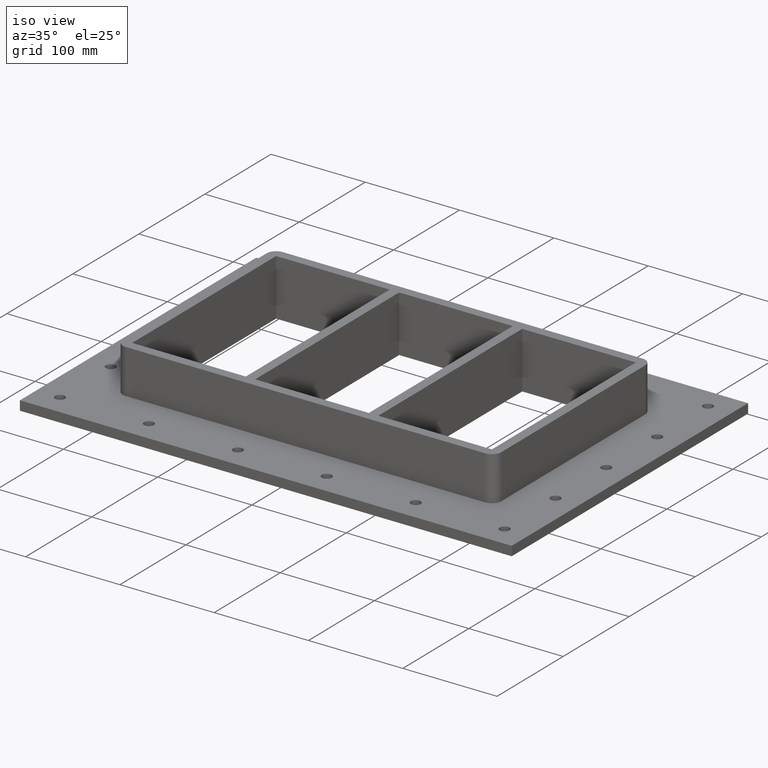
[diagram: clean part render]
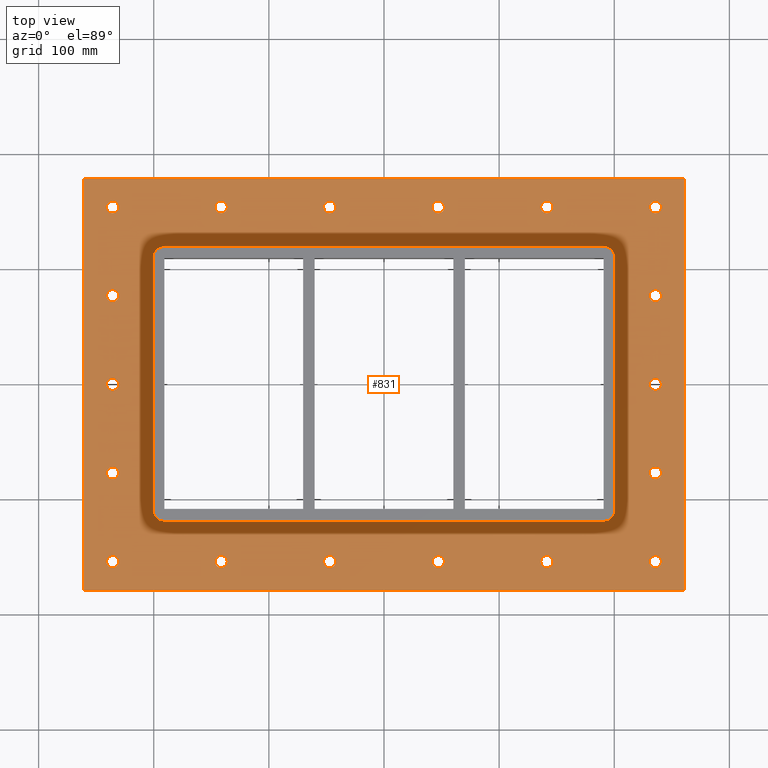
[diagram: tour spotlight — one face highlighted and labeled with its STEP entity id]
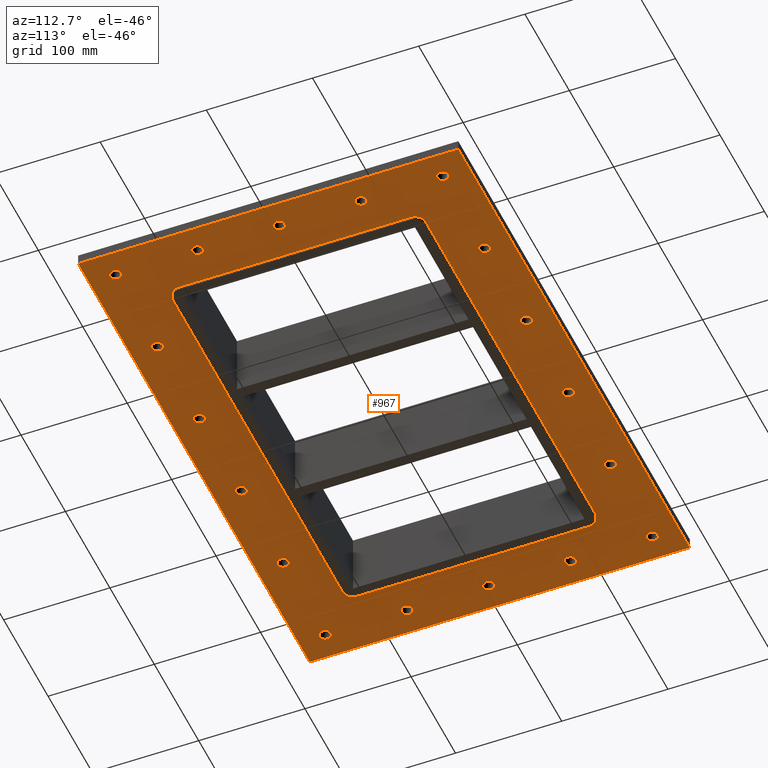
[diagram: tour spotlight — one face highlighted and labeled with its STEP entity id]
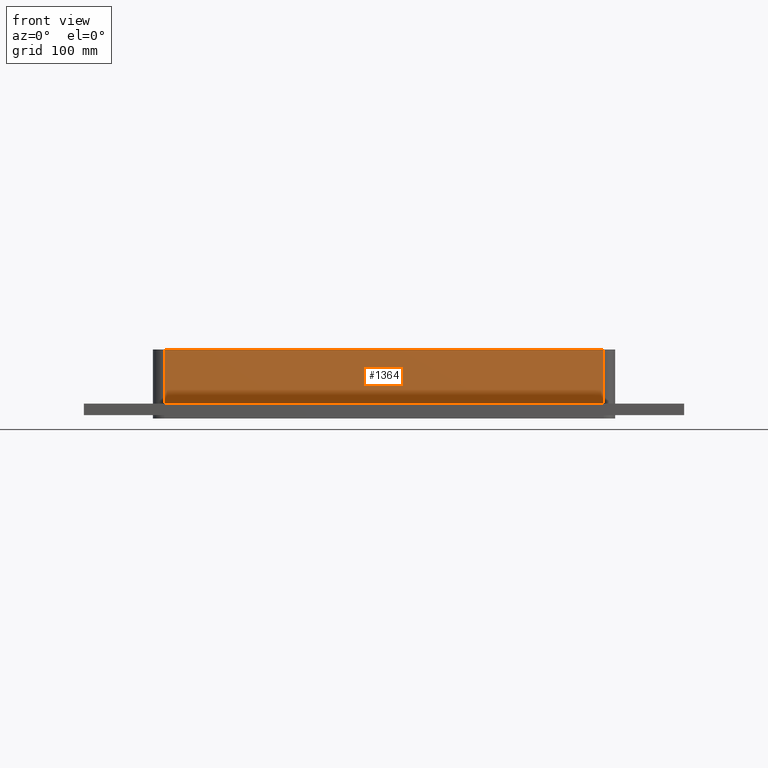
[diagram: tour spotlight — one face highlighted and labeled with its STEP entity id]
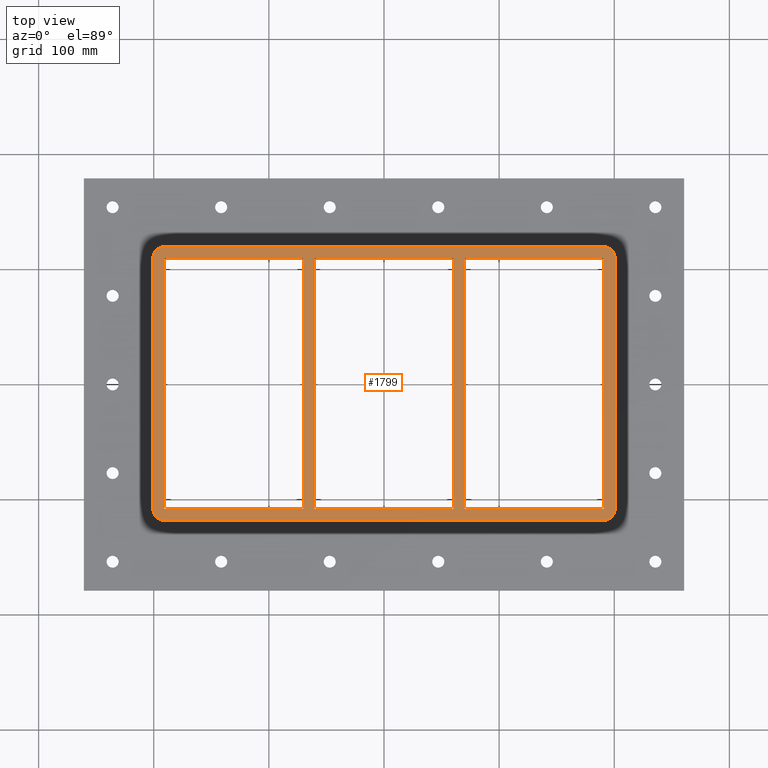
[diagram: tour spotlight — one face highlighted and labeled with its STEP entity id]
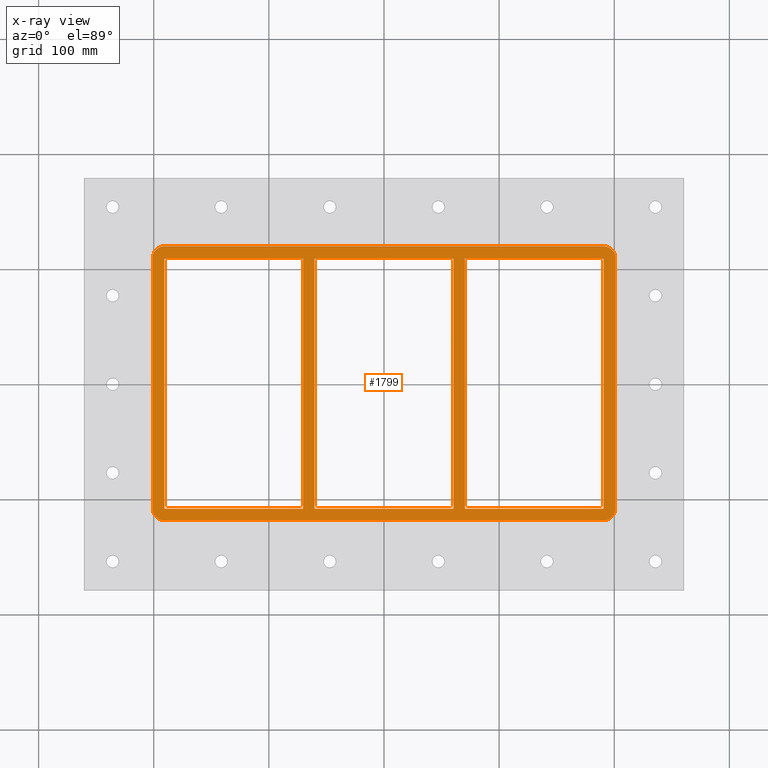
[diagram: x-ray of the same camera — body ghosted, this tour face saturated]
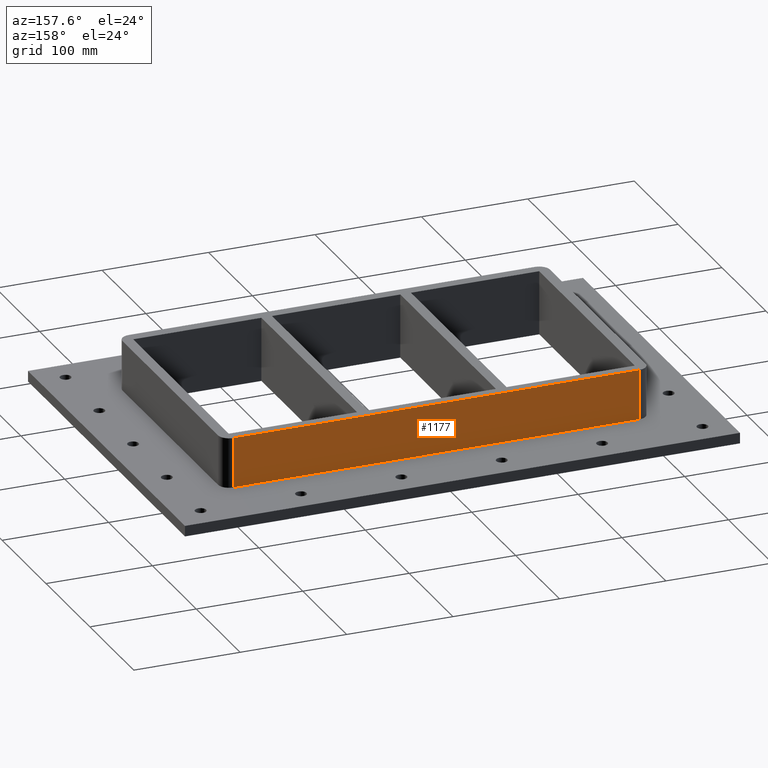
[diagram: tour spotlight — one face highlighted and labeled with its STEP entity id]
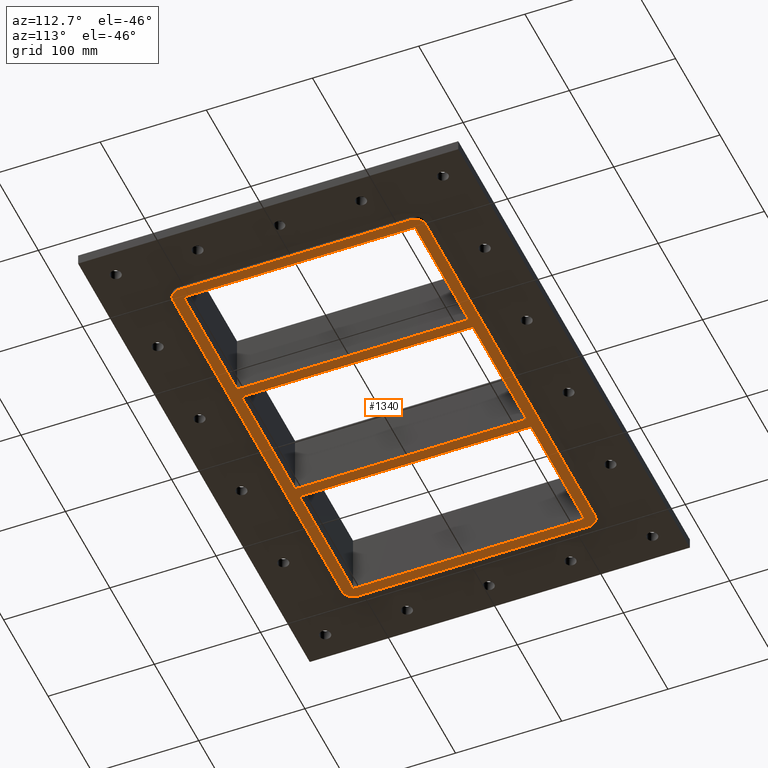
[diagram: tour spotlight — one face highlighted and labeled with its STEP entity id]
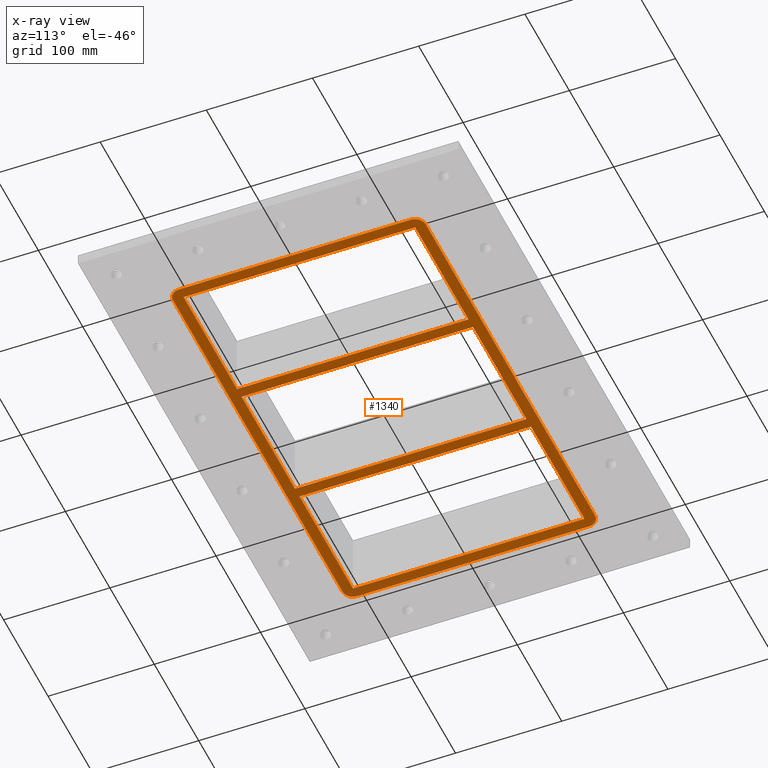
[diagram: x-ray of the same camera — body ghosted, this tour face saturated]
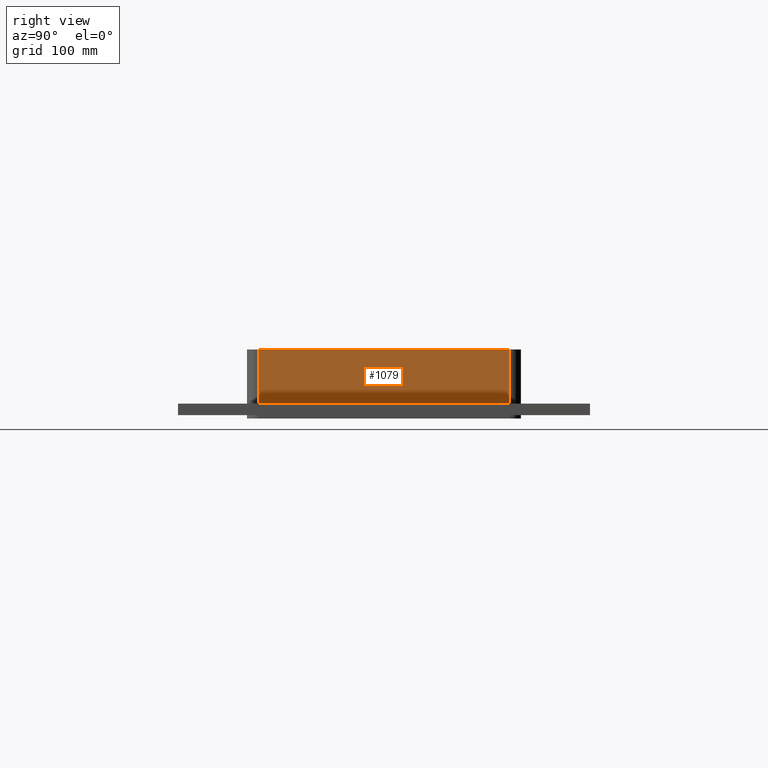
[diagram: tour spotlight — one face highlighted and labeled with its STEP entity id]
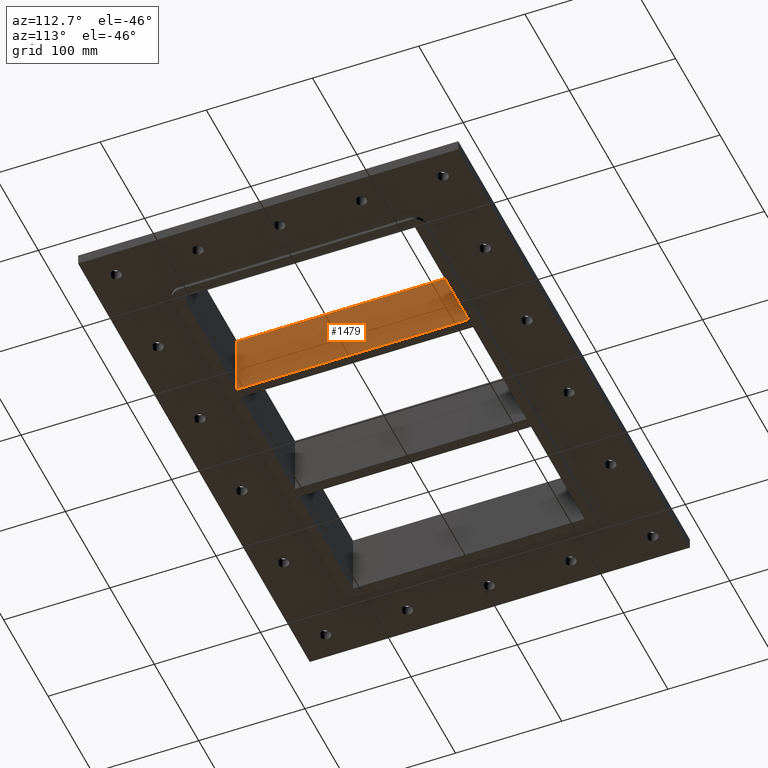
[diagram: tour spotlight — one face highlighted and labeled with its STEP entity id]
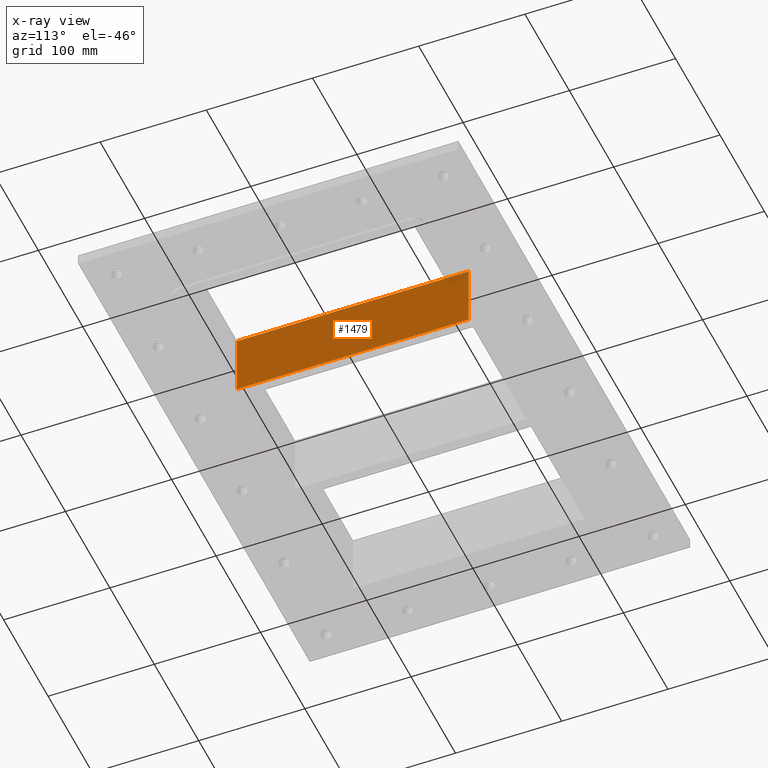
[diagram: x-ray of the same camera — body ghosted, this tour face saturated]
A machine part: a face-by-face anatomy tour. The part has 54 B-rep faces; the first image is the clean iso view, then the 8 largest visible faces are spotlighted one at a time (largest first), each with its STEP entity span.

Face 1 — top view, entity #831. In plain terms, the highlighted planar face has unit normal (0, 0, 1).
Definition (entity closure, byte-faithful):
#84=CARTESIAN_POINT('',(-136.20000000000002,-154.00000000000003,-17.0));
#85=VERTEX_POINT('',#84);
#86=CARTESIAN_POINT('',(-141.45000000000002,-154.00000000000003,-17.000000000000028));
#87=DIRECTION('',(0.0,0.0,-1.0));
#88=DIRECTION('',(1.0,0.0,0.0));
#89=AXIS2_PLACEMENT_3D('',#86,#87,#88);
#90=CIRCLE('',#89,5.25);
#91=EDGE_CURVE('',#85,#85,#90,.T.);
#112=CARTESIAN_POINT('',(-41.900000000000034,-154.00000000000003,-17.0));
#113=VERTEX_POINT('',#112);
#114=CARTESIAN_POINT('',(-47.15000000000002,-154.00000000000003,-17.000000000000028));
#115=DIRECTION('',(0.0,0.0,-1.0));
#116=DIRECTION('',(1.0,0.0,0.0));
#117=AXIS2_PLACEMENT_3D('',#114,#115,#116);
#118=CIRCLE('',#117,5.25);
#119=EDGE_CURVE('',#113,#113,#118,.T.);
#140=CARTESIAN_POINT('',(52.40000000000002,-154.00000000000003,-17.0));
#141=VERTEX_POINT('',#140);
#142=CARTESIAN_POINT('',(47.150000000000034,-154.00000000000003,-17.000000000000028));
#143=DIRECTION('',(0.0,0.0,-1.0));
#144=DIRECTION('',(1.0,0.0,0.0));
#145=AXIS2_PLACEMENT_3D('',#142,#143,#144);
#146=CIRCLE('',#145,5.25);
#147=EDGE_CURVE('',#141,#141,#146,.T.);
#168=CARTESIAN_POINT('',(146.70000000000005,-154.0,-17.0));
#169=VERTEX_POINT('',#168);
#170=CARTESIAN_POINT('',(141.45000000000005,-154.0,-17.000000000000028));
#171=DIRECTION('',(0.0,0.0,-1.0));
#172=DIRECTION('',(1.0,0.0,0.0));
#173=AXIS2_PLACEMENT_3D('',#170,#171,#172);
#174=CIRCLE('',#173,5.25);
#175=EDGE_CURVE('',#169,#169,#174,.T.);
#196=CARTESIAN_POINT('',(146.69999999999999,154.00000000000003,-17.0));
#197=VERTEX_POINT('',#196);
#198=CARTESIAN_POINT('',(141.45000000000002,154.00000000000003,-17.000000000000028));
#199=DIRECTION('',(0.0,0.0,-1.0));
#200=DIRECTION('',(1.0,0.0,0.0));
#201=AXIS2_PLACEMENT_3D('',#198,#199,#200);
#202=CIRCLE('',#201,5.25);
#203=EDGE_CURVE('',#197,#197,#202,.T.);
#224=CARTESIAN_POINT('',(52.400000000000006,154.00000000000003,-17.0));
#225=VERTEX_POINT('',#224);
#226=CARTESIAN_POINT('',(47.15000000000002,154.00000000000003,-17.000000000000028));
#227=DIRECTION('',(0.0,0.0,-1.0));
#228=DIRECTION('',(1.0,0.0,0.0));
#229=AXIS2_PLACEMENT_3D('',#226,#227,#228);
#230=CIRCLE('',#229,5.25);
#231=EDGE_CURVE('',#225,#225,#230,.T.);
#252=CARTESIAN_POINT('',(-41.900000000000048,154.00000000000003,-17.0));
#253=VERTEX_POINT('',#252);
#254=CARTESIAN_POINT('',(-47.150000000000034,154.00000000000003,-17.000000000000028));
#255=DIRECTION('',(0.0,0.0,-1.0));
#256=DIRECTION('',(1.0,0.0,0.0));
#257=AXIS2_PLACEMENT_3D('',#254,#255,#256);
#258=CIRCLE('',#257,5.25);
#259=EDGE_CURVE('',#253,#253,#258,.T.);
#280=CARTESIAN_POINT('',(-136.20000000000007,154.0,-17.0));
#281=VERTEX_POINT('',#280);
#282=CARTESIAN_POINT('',(-141.45000000000005,154.0,-17.000000000000028));
#283=DIRECTION('',(0.0,0.0,-1.0));
#284=DIRECTION('',(1.0,0.0,0.0));
#285=AXIS2_PLACEMENT_3D('',#282,#283,#284);
#286=CIRCLE('',#285,5.25);
#287=EDGE_CURVE('',#281,#281,#286,.T.);
#308=CARTESIAN_POINT('',(241.0,-76.999999999999957,-17.0));
#309=VERTEX_POINT('',#308);
#310=CARTESIAN_POINT('',(235.75000000000003,-76.999999999999957,-17.000000000000028));
#311=DIRECTION('',(0.0,0.0,-1.0));
#312=DIRECTION('',(1.0,0.0,0.0));
#313=AXIS2_PLACEMENT_3D('',#310,#311,#312);
#314=CIRCLE('',#313,5.25);
#315=EDGE_CURVE('',#309,#309,#314,.T.);
#336=CARTESIAN_POINT('',(240.99999999999997,3.552714E-014,-17.0));
#337=VERTEX_POINT('',#336);
#338=CARTESIAN_POINT('',(235.75,3.552714E-014,-17.000000000000028));
#339=DIRECTION('',(0.0,0.0,-1.0));
#340=DIRECTION('',(1.0,0.0,0.0));
#341=AXIS2_PLACEMENT_3D('',#338,#339,#340);
#342=CIRCLE('',#341,5.25);
#343=EDGE_CURVE('',#337,#337,#342,.T.);
#364=CARTESIAN_POINT('',(240.99999999999997,77.000000000000043,-17.0));
#365=VERTEX_POINT('',#364);
#366=CARTESIAN_POINT('',(235.75,77.000000000000043,-17.000000000000028));
#367=DIRECTION('',(0.0,0.0,-1.0));
#368=DIRECTION('',(1.0,0.0,0.0));
#369=AXIS2_PLACEMENT_3D('',#366,#367,#368);
#370=CIRCLE('',#369,5.25);
#371=EDGE_CURVE('',#365,#365,#370,.T.);
#392=CARTESIAN_POINT('',(-230.50000000000006,76.999999999999957,-17.0));
#393=VERTEX_POINT('',#392);
#394=CARTESIAN_POINT('',(-235.75000000000003,76.999999999999957,-17.000000000000028));
#395=DIRECTION('',(0.0,0.0,-1.0));
#396=DIRECTION('',(1.0,0.0,0.0));
#397=AXIS2_PLACEMENT_3D('',#394,#395,#396);
#398=CIRCLE('',#397,5.25);
#399=EDGE_CURVE('',#393,#393,#398,.T.);
#420=CARTESIAN_POINT('',(-230.5,-3.552714E-014,-17.0));
#421=VERTEX_POINT('',#420);
#422=CARTESIAN_POINT('',(-235.75,-3.552714E-014,-17.000000000000028));
#423=DIRECTION('',(0.0,0.0,-1.0));
#424=DIRECTION('',(1.0,0.0,0.0));
#425=AXIS2_PLACEMENT_3D('',#422,#423,#424);
#426=CIRCLE('',#425,5.25);
#427=EDGE_CURVE('',#421,#421,#426,.T.);
#448=CARTESIAN_POINT('',(-230.5,-77.000000000000043,-17.0));
#449=VERTEX_POINT('',#448);
#450=CARTESIAN_POINT('',(-235.75,-77.000000000000043,-17.000000000000028));
#451=DIRECTION('',(0.0,0.0,-1.0));
#452=DIRECTION('',(1.0,0.0,0.0));
#453=AXIS2_PLACEMENT_3D('',#450,#451,#452);
#454=CIRCLE('',#453,5.25);
#455=EDGE_CURVE('',#449,#449,#454,.T.);
#476=CARTESIAN_POINT('',(-230.50000000000009,154.0,-17.0));
#477=VERTEX_POINT('',#476);
#478=CARTESIAN_POINT('',(-235.75000000000006,154.0,-17.000000000000028));
#479=DIRECTION('',(0.0,0.0,-1.0));
#480=DIRECTION('',(1.0,0.0,0.0));
#481=AXIS2_PLACEMENT_3D('',#478,#479,#480);
#482=CIRCLE('',#481,5.25);
#483=EDGE_CURVE('',#477,#477,#482,.T.);
#504=CARTESIAN_POINT('',(240.99999999999997,154.00000000000006,-17.0));
#505=VERTEX_POINT('',#504);
#506=CARTESIAN_POINT('',(235.75,154.00000000000006,-17.000000000000028));
#507=DIRECTION('',(0.0,0.0,-1.0));
#508=DIRECTION('',(1.0,0.0,0.0));
#509=AXIS2_PLACEMENT_3D('',#506,#507,#508);
#510=CIRCLE('',#509,5.25);
#511=EDGE_CURVE('',#505,#505,#510,.T.);
#532=CARTESIAN_POINT('',(241.00000000000006,-154.0,-17.0));
#533=VERTEX_POINT('',#532);
#534=CARTESIAN_POINT('',(235.75000000000006,-154.0,-17.000000000000028));
#535=DIRECTION('',(0.0,0.0,-1.0));
#536=DIRECTION('',(1.0,0.0,0.0));
#537=AXIS2_PLACEMENT_3D('',#534,#535,#536);
#538=CIRCLE('',#537,5.25);
#539=EDGE_CURVE('',#533,#533,#538,.T.);
#560=CARTESIAN_POINT('',(-230.5,-154.00000000000006,-17.0));
#561=VERTEX_POINT('',#560);
#562=CARTESIAN_POINT('',(-235.75,-154.00000000000006,-17.000000000000028));
#563=DIRECTION('',(0.0,0.0,-1.0));
#564=DIRECTION('',(1.0,0.0,0.0));
#565=AXIS2_PLACEMENT_3D('',#562,#563,#564);
#566=CIRCLE('',#565,5.25);
#567=EDGE_CURVE('',#561,#561,#566,.T.);
#587=CARTESIAN_POINT('',(-260.75,-179.00000000000006,-17.0));
#588=VERTEX_POINT('',#587);
#595=CARTESIAN_POINT('',(-260.75000000000006,179.0,-17.0));
#596=VERTEX_POINT('',#595);
#597=CARTESIAN_POINT('',(-260.75000000000006,179.0,-17.0));
#598=DIRECTION('',(0.0,-1.0,0.0));
#599=VECTOR('',#598,358.00000000000006);
#600=LINE('',#597,#599);
#601=EDGE_CURVE('',#596,#588,#600,.T.);
#626=CARTESIAN_POINT('',(260.75,179.00000000000006,-17.0));
#627=VERTEX_POINT('',#626);
#628=CARTESIAN_POINT('',(260.74999999999994,179.00000000000006,-17.0));
#629=DIRECTION('',(-1.0,0.0,0.0));
#630=VECTOR('',#629,521.5);
#631=LINE('',#628,#630);
#632=EDGE_CURVE('',#627,#596,#631,.T.);
#657=CARTESIAN_POINT('',(260.75000000000006,-179.0,-17.0));
#658=VERTEX_POINT('',#657);
#659=CARTESIAN_POINT('',(260.75000000000006,-179.0,-17.0));
#660=DIRECTION('',(0.0,1.0,0.0));
#661=VECTOR('',#660,358.00000000000006);
#662=LINE('',#659,#661);
#663=EDGE_CURVE('',#658,#627,#662,.T.);
#686=CARTESIAN_POINT('',(-260.74999999999994,-179.00000000000006,-17.0));
#687=DIRECTION('',(1.0,0.0,0.0));
#688=VECTOR('',#687,521.5);
#689=LINE('',#686,#688);
#690=EDGE_CURVE('',#588,#658,#689,.T.);
#696=CARTESIAN_POINT('',(0.0,-2.464077E-015,-17.0));
#697=DIRECTION('',(0.0,0.0,1.0));
#698=DIRECTION('',(1.0,0.0,0.0));
#699=AXIS2_PLACEMENT_3D('',#696,#697,#698);
#700=PLANE('',#699);
#701=ORIENTED_EDGE('',*,*,#690,.T.);
#702=ORIENTED_EDGE('',*,*,#663,.T.);
#703=ORIENTED_EDGE('',*,*,#632,.T.);
#704=ORIENTED_EDGE('',*,*,#601,.T.);
#705=EDGE_LOOP('',(#701,#702,#703,#704));
#706=FACE_OUTER_BOUND('',#705,.T.);
#707=ORIENTED_EDGE('',*,*,#91,.T.);
#708=EDGE_LOOP('',(#707));
#709=FACE_BOUND('',#708,.T.);
#710=ORIENTED_EDGE('',*,*,#119,.T.);
#711=EDGE_LOOP('',(#710));
#712=FACE_BOUND('',#711,.T.);
#713=ORIENTED_EDGE('',*,*,#147,.T.);
#714=EDGE_LOOP('',(#713));
#715=FACE_BOUND('',#714,.T.);
#716=ORIENTED_EDGE('',*,*,#175,.T.);
#717=EDGE_LOOP('',(#716));
#718=FACE_BOUND('',#717,.T.);
#719=ORIENTED_EDGE('',*,*,#203,.T.);
#720=EDGE_LOOP('',(#719));
#721=FACE_BOUND('',#720,.T.);
#722=ORIENTED_EDGE('',*,*,#231,.T.);
#723=EDGE_LOOP('',(#722));
#724=FACE_BOUND('',#723,.T.);
#725=ORIENTED_EDGE('',*,*,#259,.T.);
#726=EDGE_LOOP('',(#725));
#727=FACE_BOUND('',#726,.T.);
#728=ORIENTED_EDGE('',*,*,#287,.T.);
#729=EDGE_LOOP('',(#728));
#730=FACE_BOUND('',#729,.T.);
#731=ORIENTED_EDGE('',*,*,#315,.T.);
#732=EDGE_LOOP('',(#731));
#733=FACE_BOUND('',#732,.T.);
#734=ORIENTED_EDGE('',*,*,#343,.T.);
#735=EDGE_LOOP('',(#734));
#736=FACE_BOUND('',#735,.T.);
#737=ORIENTED_EDGE('',*,*,#371,.T.);
#738=EDGE_LOOP('',(#737));
#739=FACE_BOUND('',#738,.T.);
#740=ORIENTED_EDGE('',*,*,#399,.T.);
#741=EDGE_LOOP('',(#740));
#742=FACE_BOUND('',#741,.T.);
#743=ORIENTED_EDGE('',*,*,#427,.T.);
#744=EDGE_LOOP('',(#743));
#745=FACE_BOUND('',#744,.T.);
#746=ORIENTED_EDGE('',*,*,#455,.T.);
#747=EDGE_LOOP('',(#746));
#748=FACE_BOUND('',#747,.T.);
#749=ORIENTED_EDGE('',*,*,#483,.T.);
#750=EDGE_LOOP('',(#749));
#751=FACE_BOUND('',#750,.T.);
#752=ORIENTED_EDGE('',*,*,#511,.T.);
#753=EDGE_LOOP('',(#752));
#754=FACE_BOUND('',#753,.T.);
#755=ORIENTED_EDGE('',*,*,#539,.T.);
#756=EDGE_LOOP('',(#755));
#757=FACE_BOUND('',#756,.T.);
#758=ORIENTED_EDGE('',*,*,#567,.T.);
#759=EDGE_LOOP('',(#758));
#760=FACE_BOUND('',#759,.T.);
#761=CARTESIAN_POINT('',(200.75000000000003,109.00000000000006,-17.0));
#762=VERTEX_POINT('',#761);
#763=CARTESIAN_POINT('',(190.75000000000003,119.00000000000006,-17.0));
#764=VERTEX_POINT('',#763);
#765=CARTESIAN_POINT('',(190.75000000000003,108.99999999999997,-17.0));
#766=DIRECTION('',(0.0,0.0,1.0));
#767=DIRECTION('',(0.707106781186547,0.707106781186547,0.0));
#768=AXIS2_PLACEMENT_3D('',#765,#766,#767);
#769=CIRCLE('',#768,9.999999999999998);
#770=EDGE_CURVE('',#762,#764,#769,.T.);
#771=ORIENTED_EDGE('',*,*,#770,.F.);
#772=CARTESIAN_POINT('',(200.75000000000003,-108.99999999999999,-17.0));
#773=VERTEX_POINT('',#772);
#774=CARTESIAN_POINT('',(200.75000000000003,-108.99999999999999,-17.0));
#775=DIRECTION('',(0.0,1.0,0.0));
#776=VECTOR('',#775,218.00000000000006);
#777=LINE('',#774,#776);
#778=EDGE_CURVE('',#773,#762,#777,.T.);
#779=ORIENTED_EDGE('',*,*,#778,.F.);
#780=CARTESIAN_POINT('',(190.75000000000003,-118.99999999999999,-17.0));
#781=VERTEX_POINT('',#780);
#782=CARTESIAN_POINT('',(190.75000000000003,-109.00000000000003,-17.0));
#783=DIRECTION('',(0.0,0.0,1.0));
#784=DIRECTION('',(0.707106781186547,-0.707106781186547,0.0));
#785=AXIS2_PLACEMENT_3D('',#782,#783,#784);
#786=CIRCLE('',#785,9.999999999999998);
#787=EDGE_CURVE('',#781,#773,#786,.T.);
#788=ORIENTED_EDGE('',*,*,#787,.F.);
#789=CARTESIAN_POINT('',(-190.75000000000003,-119.00000000000006,-17.0));
#790=VERTEX_POINT('',#789);
#791=CARTESIAN_POINT('',(-190.75000000000003,-119.00000000000003,-17.0));
#792=DIRECTION('',(1.0,0.0,0.0));
#793=VECTOR('',#792,381.50000000000011);
#794=LINE('',#791,#793);
#795=EDGE_CURVE('',#790,#781,#794,.T.);
#796=ORIENTED_EDGE('',*,*,#795,.F.);
#797=CARTESIAN_POINT('',(-200.75000000000003,-109.00000000000006,-17.0));
#798=VERTEX_POINT('',#797);
#799=CARTESIAN_POINT('',(-190.74999999999989,-109.00000000000003,-17.0));
#800=DIRECTION('',(0.0,0.0,1.0));
#801=DIRECTION('',(-0.707106781186547,-0.707106781186547,0.0));
#802=AXIS2_PLACEMENT_3D('',#799,#800,#801);
#803=CIRCLE('',#802,9.999999999999998);
#804=EDGE_CURVE('',#798,#790,#803,.T.);
#805=ORIENTED_EDGE('',*,*,#804,.F.);
#806=CARTESIAN_POINT('',(-200.75000000000003,108.99999999999999,-17.0));
#807=VERTEX_POINT('',#806);
#808=CARTESIAN_POINT('',(-200.75000000000009,108.99999999999999,-17.0));
#809=DIRECTION('',(0.0,-1.0,0.0));
#810=VECTOR('',#809,218.00000000000006);
#811=LINE('',#808,#810);
#812=EDGE_CURVE('',#807,#798,#811,.T.);
#813=ORIENTED_EDGE('',*,*,#812,.F.);
#814=CARTESIAN_POINT('',(-190.75000000000003,118.99999999999999,-17.0));
#815=VERTEX_POINT('',#814);
#816=CARTESIAN_POINT('',(-190.75000000000011,109.0,-17.0));
#817=DIRECTION('',(0.0,0.0,1.0));
#818=DIRECTION('',(-0.707106781186547,0.707106781186547,0.0));
#819=AXIS2_PLACEMENT_3D('',#816,#817,#818);
#820=CIRCLE('',#819,9.999999999999998);
#821=EDGE_CURVE('',#815,#807,#820,.T.);
#822=ORIENTED_EDGE('',*,*,#821,.F.);
#823=CARTESIAN_POINT('',(190.75000000000003,118.99999999999997,-17.0));
#824=DIRECTION('',(-1.0,0.0,0.0));
#825=VECTOR('',#824,381.50000000000011);
#826=LINE('',#823,#825);
#827=EDGE_CURVE('',#764,#815,#826,.T.);
#828=ORIENTED_EDGE('',*,*,#827,.F.);
#829=EDGE_LOOP('',(#771,#779,#788,#796,#805,#813,#822,#828));
#830=FACE_BOUND('',#829,.T.);
#831=ADVANCED_FACE('',(#706,#709,#712,#715,#718,#721,#724,#727,#730,#733,#736,#739,#742,#745,#748,#751,#754,#757,#760,#830),#700,.T.);

Face 2 — auxiliary view, entity #967. In plain terms, the highlighted planar face has unit normal (0, 0, 1).
Definition (entity closure, byte-faithful):
#73=CARTESIAN_POINT('',(-146.69999999999999,-154.00000000000003,-27.000000000000028));
#74=VERTEX_POINT('',#73);
#75=CARTESIAN_POINT('',(-141.45000000000002,-154.00000000000003,-27.000000000000028));
#76=DIRECTION('',(0.0,0.0,1.0));
#77=DIRECTION('',(1.0,0.0,0.0));
#78=AXIS2_PLACEMENT_3D('',#75,#76,#77);
#79=CIRCLE('',#78,5.25);
#80=EDGE_CURVE('',#74,#74,#79,.T.);
#101=CARTESIAN_POINT('',(-52.400000000000006,-154.00000000000003,-27.000000000000028));
#102=VERTEX_POINT('',#101);
#103=CARTESIAN_POINT('',(-47.15000000000002,-154.00000000000003,-27.000000000000028));
#104=DIRECTION('',(0.0,0.0,1.0));
#105=DIRECTION('',(1.0,0.0,0.0));
#106=AXIS2_PLACEMENT_3D('',#103,#104,#105);
#107=CIRCLE('',#106,5.25);
#108=EDGE_CURVE('',#102,#102,#107,.T.);
#129=CARTESIAN_POINT('',(41.900000000000048,-154.00000000000003,-27.000000000000028));
#130=VERTEX_POINT('',#129);
#131=CARTESIAN_POINT('',(47.150000000000034,-154.00000000000003,-27.000000000000028));
#132=DIRECTION('',(0.0,0.0,1.0));
#133=DIRECTION('',(1.0,0.0,0.0));
#134=AXIS2_PLACEMENT_3D('',#131,#132,#133);
#135=CIRCLE('',#134,5.25);
#136=EDGE_CURVE('',#130,#130,#135,.T.);
#157=CARTESIAN_POINT('',(136.20000000000007,-154.0,-27.000000000000028));
#158=VERTEX_POINT('',#157);
#159=CARTESIAN_POINT('',(141.45000000000005,-154.0,-27.000000000000028));
#160=DIRECTION('',(0.0,0.0,1.0));
#161=DIRECTION('',(1.0,0.0,0.0));
#162=AXIS2_PLACEMENT_3D('',#159,#160,#161);
#163=CIRCLE('',#162,5.25);
#164=EDGE_CURVE('',#158,#158,#163,.T.);
#185=CARTESIAN_POINT('',(136.20000000000002,154.00000000000003,-27.000000000000028));
#186=VERTEX_POINT('',#185);
#187=CARTESIAN_POINT('',(141.45000000000002,154.00000000000003,-27.000000000000028));
#188=DIRECTION('',(0.0,0.0,1.0));
#189=DIRECTION('',(1.0,0.0,0.0));
#190=AXIS2_PLACEMENT_3D('',#187,#188,#189);
#191=CIRCLE('',#190,5.25);
#192=EDGE_CURVE('',#186,#186,#191,.T.);
#213=CARTESIAN_POINT('',(41.900000000000034,154.00000000000003,-27.000000000000028));
#214=VERTEX_POINT('',#213);
#215=CARTESIAN_POINT('',(47.15000000000002,154.00000000000003,-27.000000000000028));
#216=DIRECTION('',(0.0,0.0,1.0));
#217=DIRECTION('',(1.0,0.0,0.0));
#218=AXIS2_PLACEMENT_3D('',#215,#216,#217);
#219=CIRCLE('',#218,5.25);
#220=EDGE_CURVE('',#214,#214,#219,.T.);
#241=CARTESIAN_POINT('',(-52.40000000000002,154.00000000000003,-27.000000000000028));
#242=VERTEX_POINT('',#241);
#243=CARTESIAN_POINT('',(-47.150000000000034,154.00000000000003,-27.000000000000028));
#244=DIRECTION('',(0.0,0.0,1.0));
#245=DIRECTION('',(1.0,0.0,0.0));
#246=AXIS2_PLACEMENT_3D('',#243,#244,#245);
#247=CIRCLE('',#246,5.25);
#248=EDGE_CURVE('',#242,#242,#247,.T.);
#269=CARTESIAN_POINT('',(-146.70000000000005,154.0,-27.000000000000028));
#270=VERTEX_POINT('',#269);
#271=CARTESIAN_POINT('',(-141.45000000000005,154.0,-27.000000000000028));
#272=DIRECTION('',(0.0,0.0,1.0));
#273=DIRECTION('',(1.0,0.0,0.0));
#274=AXIS2_PLACEMENT_3D('',#271,#272,#273);
#275=CIRCLE('',#274,5.25);
#276=EDGE_CURVE('',#270,#270,#275,.T.);
#297=CARTESIAN_POINT('',(230.50000000000006,-76.999999999999957,-27.000000000000028));
#298=VERTEX_POINT('',#297);
#299=CARTESIAN_POINT('',(235.75000000000003,-76.999999999999957,-27.000000000000028));
#300=DIRECTION('',(0.0,0.0,1.0));
#301=DIRECTION('',(1.0,0.0,0.0));
#302=AXIS2_PLACEMENT_3D('',#299,#300,#301);
#303=CIRCLE('',#302,5.25);
#304=EDGE_CURVE('',#298,#298,#303,.T.);
#325=CARTESIAN_POINT('',(230.5,3.552714E-014,-27.000000000000028));
#326=VERTEX_POINT('',#325);
#327=CARTESIAN_POINT('',(235.75,3.552714E-014,-27.000000000000028));
#328=DIRECTION('',(0.0,0.0,1.0));
#329=DIRECTION('',(1.0,0.0,0.0));
#330=AXIS2_PLACEMENT_3D('',#327,#328,#329);
#331=CIRCLE('',#330,5.25);
#332=EDGE_CURVE('',#326,#326,#331,.T.);
#353=CARTESIAN_POINT('',(230.5,77.000000000000043,-27.000000000000028));
#354=VERTEX_POINT('',#353);
#355=CARTESIAN_POINT('',(235.75,77.000000000000043,-27.000000000000028));
#356=DIRECTION('',(0.0,0.0,1.0));
#357=DIRECTION('',(1.0,0.0,0.0));
#358=AXIS2_PLACEMENT_3D('',#355,#356,#357);
#359=CIRCLE('',#358,5.25);
#360=EDGE_CURVE('',#354,#354,#359,.T.);
#381=CARTESIAN_POINT('',(-241.0,76.999999999999957,-27.000000000000028));
#382=VERTEX_POINT('',#381);
#383=CARTESIAN_POINT('',(-235.75000000000003,76.999999999999957,-27.000000000000028));
#384=DIRECTION('',(0.0,0.0,1.0));
#385=DIRECTION('',(1.0,0.0,0.0));
#386=AXIS2_PLACEMENT_3D('',#383,#384,#385);
#387=CIRCLE('',#386,5.25);
#388=EDGE_CURVE('',#382,#382,#387,.T.);
#409=CARTESIAN_POINT('',(-240.99999999999997,-3.552714E-014,-27.000000000000028));
#410=VERTEX_POINT('',#409);
#411=CARTESIAN_POINT('',(-235.75,-3.552714E-014,-27.000000000000028));
#412=DIRECTION('',(0.0,0.0,1.0));
#413=DIRECTION('',(1.0,0.0,0.0));
#414=AXIS2_PLACEMENT_3D('',#411,#412,#413);
#415=CIRCLE('',#414,5.25);
#416=EDGE_CURVE('',#410,#410,#415,.T.);
#437=CARTESIAN_POINT('',(-240.99999999999997,-77.000000000000043,-27.000000000000028));
#438=VERTEX_POINT('',#437);
#439=CARTESIAN_POINT('',(-235.75,-77.000000000000043,-27.000000000000028));
#440=DIRECTION('',(0.0,0.0,1.0));
#441=DIRECTION('',(1.0,0.0,0.0));
#442=AXIS2_PLACEMENT_3D('',#439,#440,#441);
#443=CIRCLE('',#442,5.25);
#444=EDGE_CURVE('',#438,#438,#443,.T.);
#465=CARTESIAN_POINT('',(-241.00000000000006,154.0,-27.000000000000028));
#466=VERTEX_POINT('',#465);
#467=CARTESIAN_POINT('',(-235.75000000000006,154.0,-27.000000000000028));
#468=DIRECTION('',(0.0,0.0,1.0));
#469=DIRECTION('',(1.0,0.0,0.0));
#470=AXIS2_PLACEMENT_3D('',#467,#468,#469);
#471=CIRCLE('',#470,5.25);
#472=EDGE_CURVE('',#466,#466,#471,.T.);
#493=CARTESIAN_POINT('',(230.5,154.00000000000006,-27.000000000000028));
#494=VERTEX_POINT('',#493);
#495=CARTESIAN_POINT('',(235.75,154.00000000000006,-27.000000000000028));
#496=DIRECTION('',(0.0,0.0,1.0));
#497=DIRECTION('',(1.0,0.0,0.0));
#498=AXIS2_PLACEMENT_3D('',#495,#496,#497);
#499=CIRCLE('',#498,5.25);
#500=EDGE_CURVE('',#494,#494,#499,.T.);
#521=CARTESIAN_POINT('',(230.50000000000009,-154.0,-27.000000000000028));
#522=VERTEX_POINT('',#521);
#523=CARTESIAN_POINT('',(235.75000000000006,-154.0,-27.000000000000028));
#524=DIRECTION('',(0.0,0.0,1.0));
#525=DIRECTION('',(1.0,0.0,0.0));
#526=AXIS2_PLACEMENT_3D('',#523,#524,#525);
#527=CIRCLE('',#526,5.25);
#528=EDGE_CURVE('',#522,#522,#527,.T.);
#549=CARTESIAN_POINT('',(-240.99999999999997,-154.00000000000006,-27.000000000000028));
#550=VERTEX_POINT('',#549);
#551=CARTESIAN_POINT('',(-235.75,-154.00000000000006,-27.000000000000028));
#552=DIRECTION('',(0.0,0.0,1.0));
#553=DIRECTION('',(1.0,0.0,0.0));
#554=AXIS2_PLACEMENT_3D('',#551,#552,#553);
#555=CIRCLE('',#554,5.25);
#556=EDGE_CURVE('',#550,#550,#555,.T.);
#577=CARTESIAN_POINT('',(-260.75,-179.00000000000006,-27.0));
#578=VERTEX_POINT('',#577);
#579=CARTESIAN_POINT('',(-260.75000000000006,179.0,-27.0));
#580=VERTEX_POINT('',#579);
#581=CARTESIAN_POINT('',(-260.75,-179.00000000000006,-27.0));
#582=DIRECTION('',(0.0,1.0,0.0));
#583=VECTOR('',#582,358.00000000000006);
#584=LINE('',#581,#583);
#585=EDGE_CURVE('',#578,#580,#584,.T.);
#617=CARTESIAN_POINT('',(260.75,179.00000000000006,-27.0));
#618=VERTEX_POINT('',#617);
#619=CARTESIAN_POINT('',(-260.75000000000006,179.0,-27.0));
#620=DIRECTION('',(1.0,0.0,0.0));
#621=VECTOR('',#620,521.5);
#622=LINE('',#619,#621);
#623=EDGE_CURVE('',#580,#618,#622,.T.);
#648=CARTESIAN_POINT('',(260.75000000000006,-179.0,-27.0));
#649=VERTEX_POINT('',#648);
#650=CARTESIAN_POINT('',(260.75,179.00000000000006,-27.0));
#651=DIRECTION('',(0.0,-1.0,0.0));
#652=VECTOR('',#651,358.00000000000006);
#653=LINE('',#650,#652);
#654=EDGE_CURVE('',#618,#649,#653,.T.);
#679=CARTESIAN_POINT('',(260.75000000000006,-179.0,-27.0));
#680=DIRECTION('',(-1.0,0.0,0.0));
#681=VECTOR('',#680,521.5);
#682=LINE('',#679,#681);
#683=EDGE_CURVE('',#649,#578,#682,.T.);
#832=CARTESIAN_POINT('',(0.0,-2.464077E-015,-27.0));
#833=DIRECTION('',(0.0,0.0,1.0));
#834=DIRECTION('',(1.0,0.0,0.0));
#835=AXIS2_PLACEMENT_3D('',#832,#833,#834);
#836=PLANE('',#835);
#837=ORIENTED_EDGE('',*,*,#683,.T.);
#838=ORIENTED_EDGE('',*,*,#585,.T.);
#839=ORIENTED_EDGE('',*,*,#623,.T.);
#840=ORIENTED_EDGE('',*,*,#654,.T.);
#841=EDGE_LOOP('',(#837,#838,#839,#840));
#842=FACE_OUTER_BOUND('',#841,.T.);
#843=ORIENTED_EDGE('',*,*,#80,.T.);
#844=EDGE_LOOP('',(#843));
#845=FACE_BOUND('',#844,.T.);
#846=ORIENTED_EDGE('',*,*,#108,.T.);
#847=EDGE_LOOP('',(#846));
#848=FACE_BOUND('',#847,.T.);
#849=ORIENTED_EDGE('',*,*,#136,.T.);
#850=EDGE_LOOP('',(#849));
#851=FACE_BOUND('',#850,.T.);
#852=ORIENTED_EDGE('',*,*,#164,.T.);
#853=EDGE_LOOP('',(#852));
#854=FACE_BOUND('',#853,.T.);
#855=ORIENTED_EDGE('',*,*,#192,.T.);
#856=EDGE_LOOP('',(#855));
#857=FACE_BOUND('',#856,.T.);
#858=ORIENTED_EDGE('',*,*,#220,.T.);
#859=EDGE_LOOP('',(#858));
#860=FACE_BOUND('',#859,.T.);
#861=ORIENTED_EDGE('',*,*,#248,.T.);
#862=EDGE_LOOP('',(#861));
#863=FACE_BOUND('',#862,.T.);
#864=ORIENTED_EDGE('',*,*,#276,.T.);
#865=EDGE_LOOP('',(#864));
#866=FACE_BOUND('',#865,.T.);
#867=ORIENTED_EDGE('',*,*,#304,.T.);
#868=EDGE_LOOP('',(#867));
#869=FACE_BOUND('',#868,.T.);
#870=ORIENTED_EDGE('',*,*,#332,.T.);
#871=EDGE_LOOP('',(#870));
#872=FACE_BOUND('',#871,.T.);
#873=ORIENTED_EDGE('',*,*,#360,.T.);
#874=EDGE_LOOP('',(#873));
#875=FACE_BOUND('',#874,.T.);
#876=ORIENTED_EDGE('',*,*,#388,.T.);
#877=EDGE_LOOP('',(#876));
#878=FACE_BOUND('',#877,.T.);
#879=ORIENTED_EDGE('',*,*,#416,.T.);
#880=EDGE_LOOP('',(#879));
#881=FACE_BOUND('',#880,.T.);
#882=ORIENTED_EDGE('',*,*,#444,.T.);
#883=EDGE_LOOP('',(#882));
#884=FACE_BOUND('',#883,.T.);
#885=ORIENTED_EDGE('',*,*,#472,.T.);
#886=EDGE_LOOP('',(#885));
#887=FACE_BOUND('',#886,.T.);
#888=ORIENTED_EDGE('',*,*,#500,.T.);
#889=EDGE_LOOP('',(#888));
#890=FACE_BOUND('',#889,.T.);
#891=ORIENTED_EDGE('',*,*,#528,.T.);
#892=EDGE_LOOP('',(#891));
#893=FACE_BOUND('',#892,.T.);
#894=ORIENTED_EDGE('',*,*,#556,.T.);
#895=EDGE_LOOP('',(#894));
#896=FACE_BOUND('',#895,.T.);
#897=CARTESIAN_POINT('',(190.75000000000003,119.00000000000006,-27.0));
#898=VERTEX_POINT('',#897);
#899=CARTESIAN_POINT('',(200.75000000000003,109.00000000000006,-27.0));
#900=VERTEX_POINT('',#899);
#901=CARTESIAN_POINT('',(190.75000000000003,108.99999999999997,-27.0));
#902=DIRECTION('',(0.0,0.0,-1.0));
#903=DIRECTION('',(0.707106781186547,0.707106781186547,0.0));
#904=AXIS2_PLACEMENT_3D('',#901,#902,#903);
#905=CIRCLE('',#904,9.999999999999998);
#906=EDGE_CURVE('',#898,#900,#905,.T.);
#907=ORIENTED_EDGE('',*,*,#906,.F.);
#908=CARTESIAN_POINT('',(-190.75000000000003,118.99999999999999,-27.0));
#909=VERTEX_POINT('',#908);
#910=CARTESIAN_POINT('',(-190.75000000000006,119.00000000000003,-27.0));
#911=DIRECTION('',(1.0,0.0,0.0));
#912=VECTOR('',#911,381.50000000000011);
#913=LINE('',#910,#912);
#914=EDGE_CURVE('',#909,#898,#913,.T.);
#915=ORIENTED_EDGE('',*,*,#914,.F.);
#916=CARTESIAN_POINT('',(-200.75000000000003,108.99999999999999,-27.0));
#917=VERTEX_POINT('',#916);
#918=CARTESIAN_POINT('',(-190.75000000000011,109.0,-27.0));
#919=DIRECTION('',(0.0,0.0,-1.0));
#920=DIRECTION('',(-0.707106781186547,0.707106781186547,0.0));
#921=AXIS2_PLACEMENT_3D('',#918,#919,#920);
#922=CIRCLE('',#921,9.999999999999998);
#923=EDGE_CURVE('',#917,#909,#922,.T.);
#924=ORIENTED_EDGE('',*,*,#923,.F.);
#925=CARTESIAN_POINT('',(-200.75000000000003,-109.00000000000006,-27.0));
#926=VERTEX_POINT('',#925);
#927=CARTESIAN_POINT('',(-200.74999999999989,-109.00000000000006,-27.0));
#928=DIRECTION('',(0.0,1.0,0.0));
#929=VECTOR('',#928,218.00000000000006);
#930=LINE('',#927,#929);
#931=EDGE_CURVE('',#926,#917,#930,.T.);
#932=ORIENTED_EDGE('',*,*,#931,.F.);
#933=CARTESIAN_POINT('',(-190.75000000000003,-119.00000000000006,-27.0));
#934=VERTEX_POINT('',#933);
#935=CARTESIAN_POINT('',(-190.74999999999989,-109.00000000000003,-27.0));
#936=DIRECTION('',(0.0,0.0,-1.0));
#937=DIRECTION('',(-0.707106781186547,-0.707106781186547,0.0));
#938=AXIS2_PLACEMENT_3D('',#935,#936,#937);
#939=CIRCLE('',#938,9.999999999999998);
#940=EDGE_CURVE('',#934,#926,#939,.T.);
#941=ORIENTED_EDGE('',*,*,#940,.F.);
#942=CARTESIAN_POINT('',(190.75000000000003,-118.99999999999999,-27.0));
#943=VERTEX_POINT('',#942);
#944=CARTESIAN_POINT('',(190.75000000000006,-119.00000000000003,-27.0));
#945=DIRECTION('',(-1.0,0.0,0.0));
#946=VECTOR('',#945,381.50000000000011);
#947=LINE('',#944,#946);
#948=EDGE_CURVE('',#943,#934,#947,.T.);
#949=ORIENTED_EDGE('',*,*,#948,.F.);
#950=CARTESIAN_POINT('',(200.75000000000003,-108.99999999999999,-27.0));
#951=VERTEX_POINT('',#950);
#952=CARTESIAN_POINT('',(190.75000000000003,-109.00000000000003,-27.0));
#953=DIRECTION('',(0.0,0.0,-1.0));
#954=DIRECTION('',(0.707106781186547,-0.707106781186547,0.0));
#955=AXIS2_PLACEMENT_3D('',#952,#953,#954);
#956=CIRCLE('',#955,9.999999999999998);
#957=EDGE_CURVE('',#951,#943,#956,.T.);
#958=ORIENTED_EDGE('',*,*,#957,.F.);
#959=CARTESIAN_POINT('',(200.75,109.00000000000006,-27.0));
#960=DIRECTION('',(0.0,-1.0,0.0));
#961=VECTOR('',#960,218.00000000000006);
#962=LINE('',#959,#961);
#963=EDGE_CURVE('',#900,#951,#962,.T.);
#964=ORIENTED_EDGE('',*,*,#963,.F.);
#965=EDGE_LOOP('',(#907,#915,#924,#932,#941,#949,#958,#964));
#966=FACE_BOUND('',#965,.T.);
#967=ADVANCED_FACE('',(#842,#845,#848,#851,#854,#857,#860,#863,#866,#869,#872,#875,#878,#881,#884,#887,#890,#893,#896,#966),#836,.F.);

Face 3 — front view, entity #1364. In plain terms, the highlighted planar face has unit normal (0, -1, 0).
Definition (entity closure, byte-faithful):
#780=CARTESIAN_POINT('',(190.75000000000003,-118.99999999999999,-17.0));
#781=VERTEX_POINT('',#780);
#789=CARTESIAN_POINT('',(-190.75000000000003,-119.00000000000006,-17.0));
#790=VERTEX_POINT('',#789);
#791=CARTESIAN_POINT('',(-190.75000000000003,-119.00000000000003,-17.0));
#792=DIRECTION('',(1.0,0.0,0.0));
#793=VECTOR('',#792,381.50000000000011);
#794=LINE('',#791,#793);
#795=EDGE_CURVE('',#790,#781,#794,.T.);
#1014=CARTESIAN_POINT('',(190.75000000000003,-119.00000000000003,30.0));
#1015=VERTEX_POINT('',#1014);
#1023=CARTESIAN_POINT('',(190.75000000000003,-119.00000000000003,30.0));
#1024=DIRECTION('',(0.0,0.0,-1.0));
#1025=VECTOR('',#1024,47.0);
#1026=LINE('',#1023,#1025);
#1027=EDGE_CURVE('',#1015,#781,#1026,.T.);
#1341=CARTESIAN_POINT('',(-200.74999999999989,-119.00000000000003,0.0));
#1342=DIRECTION('',(0.0,-1.0,0.0));
#1343=DIRECTION('',(1.0,0.0,0.0));
#1344=AXIS2_PLACEMENT_3D('',#1341,#1342,#1343);
#1345=PLANE('',#1344);
#1346=ORIENTED_EDGE('',*,*,#795,.T.);
#1347=ORIENTED_EDGE('',*,*,#1027,.F.);
#1348=CARTESIAN_POINT('',(-190.74999999999989,-119.00000000000003,30.0));
#1349=VERTEX_POINT('',#1348);
#1350=CARTESIAN_POINT('',(-190.74999999999989,-119.00000000000003,30.0));
#1351=DIRECTION('',(1.0,0.0,0.0));
#1352=VECTOR('',#1351,381.49999999999989);
#1353=LINE('',#1350,#1352);
#1354=EDGE_CURVE('',#1349,#1015,#1353,.T.);
#1355=ORIENTED_EDGE('',*,*,#1354,.F.);
#1356=CARTESIAN_POINT('',(-190.74999999999989,-119.00000000000003,-17.0));
#1357=DIRECTION('',(0.0,0.0,1.0));
#1358=VECTOR('',#1357,47.0);
#1359=LINE('',#1356,#1358);
#1360=EDGE_CURVE('',#790,#1349,#1359,.T.);
#1361=ORIENTED_EDGE('',*,*,#1360,.F.);
#1362=EDGE_LOOP('',(#1346,#1347,#1355,#1361));
#1363=FACE_OUTER_BOUND('',#1362,.T.);
#1364=ADVANCED_FACE('',(#1363),#1345,.T.);

Face 4 — top view, entity #1799. An x-ray twin of the same camera follows (body ghosted, this face saturated) — the face is partly hidden behind the body. In plain terms, the highlighted planar face has unit normal (0, 0, 1).
Definition (entity closure, byte-faithful):
#1006=CARTESIAN_POINT('',(200.75000000000003,-109.00000000000003,30.0));
#1007=VERTEX_POINT('',#1006);
#1014=CARTESIAN_POINT('',(190.75000000000003,-119.00000000000003,30.0));
#1015=VERTEX_POINT('',#1014);
#1016=CARTESIAN_POINT('',(190.75000000000003,-109.00000000000003,30.0));
#1017=DIRECTION('',(0.0,0.0,-1.0));
#1018=DIRECTION('',(0.707106781186547,-0.707106781186547,0.0));
#1019=AXIS2_PLACEMENT_3D('',#1016,#1017,#1018);
#1020=CIRCLE('',#1019,9.999999999999998);
#1021=EDGE_CURVE('',#1007,#1015,#1020,.T.);
#1062=CARTESIAN_POINT('',(200.75,108.99999999999994,30.0));
#1063=VERTEX_POINT('',#1062);
#1070=CARTESIAN_POINT('',(200.75000000000003,-109.00000000000003,30.0));
#1071=DIRECTION('',(0.0,1.0,0.0));
#1072=VECTOR('',#1071,217.99999999999997);
#1073=LINE('',#1070,#1072);
#1074=EDGE_CURVE('',#1007,#1063,#1073,.T.);
#1111=CARTESIAN_POINT('',(190.75000000000003,118.99999999999997,30.0));
#1112=VERTEX_POINT('',#1111);
#1119=CARTESIAN_POINT('',(190.75000000000003,108.99999999999997,30.0));
#1120=DIRECTION('',(0.0,0.0,-1.0));
#1121=DIRECTION('',(0.707106781186547,0.707106781186547,0.0));
#1122=AXIS2_PLACEMENT_3D('',#1119,#1120,#1121);
#1123=CIRCLE('',#1122,9.999999999999998);
#1124=EDGE_CURVE('',#1112,#1063,#1123,.T.);
#1160=CARTESIAN_POINT('',(-190.75000000000006,119.00000000000003,30.0));
#1161=VERTEX_POINT('',#1160);
#1168=CARTESIAN_POINT('',(190.75000000000003,118.99999999999997,30.0));
#1169=DIRECTION('',(-1.0,0.0,0.0));
#1170=VECTOR('',#1169,381.50000000000011);
#1171=LINE('',#1168,#1170);
#1172=EDGE_CURVE('',#1112,#1161,#1171,.T.);
#1348=CARTESIAN_POINT('',(-190.74999999999989,-119.00000000000003,30.0));
#1349=VERTEX_POINT('',#1348);
#1350=CARTESIAN_POINT('',(-190.74999999999989,-119.00000000000003,30.0));
#1351=DIRECTION('',(1.0,0.0,0.0));
#1352=VECTOR('',#1351,381.49999999999989);
#1353=LINE('',#1350,#1352);
#1354=EDGE_CURVE('',#1349,#1015,#1353,.T.);
#1372=CARTESIAN_POINT('',(-200.74999999999989,-109.00000000000003,30.0));
#1373=VERTEX_POINT('',#1372);
#1374=CARTESIAN_POINT('',(-190.74999999999989,-109.00000000000003,30.0));
#1375=DIRECTION('',(0.0,0.0,-1.0));
#1376=DIRECTION('',(-0.707106781186547,-0.707106781186547,0.0));
#1377=AXIS2_PLACEMENT_3D('',#1374,#1375,#1376);
#1378=CIRCLE('',#1377,9.999999999999998);
#1379=EDGE_CURVE('',#1349,#1373,#1378,.T.);
#1396=CARTESIAN_POINT('',(-200.75000000000011,108.99999999999999,30.0));
#1397=VERTEX_POINT('',#1396);
#1404=CARTESIAN_POINT('',(-190.75000000000011,109.0,30.0));
#1405=DIRECTION('',(0.0,0.0,-1.0));
#1406=DIRECTION('',(-0.707106781186547,0.707106781186547,0.0));
#1407=AXIS2_PLACEMENT_3D('',#1404,#1405,#1406);
#1408=CIRCLE('',#1407,9.999999999999998);
#1409=EDGE_CURVE('',#1397,#1161,#1408,.T.);
#1455=CARTESIAN_POINT('',(70.249999999999915,108.99999999999999,30.0));
#1456=VERTEX_POINT('',#1455);
#1463=CARTESIAN_POINT('',(70.249999999999986,-108.99999999999977,30.0));
#1464=VERTEX_POINT('',#1463);
#1465=CARTESIAN_POINT('',(70.249999999999986,-108.99999999999977,30.0));
#1466=DIRECTION('',(0.0,1.0,0.0));
#1467=VECTOR('',#1466,217.99999999999977);
#1468=LINE('',#1465,#1467);
#1469=EDGE_CURVE('',#1464,#1456,#1468,.T.);
#1487=CARTESIAN_POINT('',(190.75,-109.00000000000003,30.0));
#1488=VERTEX_POINT('',#1487);
#1489=CARTESIAN_POINT('',(190.75,-109.00000000000003,30.0));
#1490=DIRECTION('',(-1.0,0.0,0.0));
#1491=VECTOR('',#1490,120.50000000000001);
#1492=LINE('',#1489,#1491);
#1493=EDGE_CURVE('',#1488,#1464,#1492,.T.);
#1511=CARTESIAN_POINT('',(190.74999999999994,108.99999999999999,30.0));
#1512=VERTEX_POINT('',#1511);
#1513=CARTESIAN_POINT('',(190.74999999999994,108.99999999999999,30.0));
#1514=DIRECTION('',(0.0,-1.0,0.0));
#1515=VECTOR('',#1514,217.99999999999997);
#1516=LINE('',#1513,#1515);
#1517=EDGE_CURVE('',#1512,#1488,#1516,.T.);
#1535=CARTESIAN_POINT('',(70.249999999999915,108.99999999999999,30.0));
#1536=DIRECTION('',(1.0,0.0,0.0));
#1537=VECTOR('',#1536,120.50000000000006);
#1538=LINE('',#1535,#1537);
#1539=EDGE_CURVE('',#1456,#1512,#1538,.T.);
#1551=CARTESIAN_POINT('',(-60.250000000000092,108.99999999999999,30.0));
#1552=VERTEX_POINT('',#1551);
#1559=CARTESIAN_POINT('',(-60.250000000000021,-108.99999999999977,30.0));
#1560=VERTEX_POINT('',#1559);
#1561=CARTESIAN_POINT('',(-60.250000000000028,-108.99999999999977,30.0));
#1562=DIRECTION('',(0.0,1.0,0.0));
#1563=VECTOR('',#1562,217.99999999999977);
#1564=LINE('',#1561,#1563);
#1565=EDGE_CURVE('',#1560,#1552,#1564,.T.);
#1583=CARTESIAN_POINT('',(60.249999999999986,-109.00000000000003,30.0));
#1584=VERTEX_POINT('',#1583);
#1585=CARTESIAN_POINT('',(60.249999999999986,-109.0,30.0));
#1586=DIRECTION('',(-1.0,0.0,0.0));
#1587=VECTOR('',#1586,120.50000000000001);
#1588=LINE('',#1585,#1587);
#1589=EDGE_CURVE('',#1584,#1560,#1588,.T.);
#1607=CARTESIAN_POINT('',(60.249999999999943,108.99999999999999,30.0));
#1608=VERTEX_POINT('',#1607);
#1609=CARTESIAN_POINT('',(60.249999999999936,108.99999999999999,30.0));
#1610=DIRECTION('',(0.0,-1.0,0.0));
#1611=VECTOR('',#1610,218.0);
#1612=LINE('',#1609,#1611);
#1613=EDGE_CURVE('',#1608,#1584,#1612,.T.);
#1631=CARTESIAN_POINT('',(-60.250000000000092,108.99999999999999,30.0));
#1632=DIRECTION('',(1.0,0.0,0.0));
#1633=VECTOR('',#1632,120.50000000000003);
#1634=LINE('',#1631,#1633);
#1635=EDGE_CURVE('',#1552,#1608,#1634,.T.);
#1647=CARTESIAN_POINT('',(-190.75000000000011,108.99999999999999,30.0));
#1648=VERTEX_POINT('',#1647);
#1655=CARTESIAN_POINT('',(-190.75000000000003,-108.99999999999977,30.0));
#1656=VERTEX_POINT('',#1655);
#1657=CARTESIAN_POINT('',(-190.75,-108.99999999999977,30.0));
#1658=DIRECTION('',(0.0,1.0,0.0));
#1659=VECTOR('',#1658,217.99999999999977);
#1660=LINE('',#1657,#1659);
#1661=EDGE_CURVE('',#1656,#1648,#1660,.T.);
#1679=CARTESIAN_POINT('',(-70.250000000000028,-109.00000000000003,30.0));
#1680=VERTEX_POINT('',#1679);
#1681=CARTESIAN_POINT('',(-70.250000000000014,-109.00000000000001,30.0));
#1682=DIRECTION('',(-1.0,0.0,0.0));
#1683=VECTOR('',#1682,120.50000000000001);
#1684=LINE('',#1681,#1683);
#1685=EDGE_CURVE('',#1680,#1656,#1684,.T.);
#1703=CARTESIAN_POINT('',(-70.250000000000071,108.99999999999999,30.0));
#1704=VERTEX_POINT('',#1703);
#1705=CARTESIAN_POINT('',(-70.250000000000071,108.99999999999999,30.0));
#1706=DIRECTION('',(0.0,-1.0,0.0));
#1707=VECTOR('',#1706,218.0);
#1708=LINE('',#1705,#1707);
#1709=EDGE_CURVE('',#1704,#1680,#1708,.T.);
#1727=CARTESIAN_POINT('',(-190.75000000000011,108.99999999999999,30.0));
#1728=DIRECTION('',(1.0,0.0,0.0));
#1729=VECTOR('',#1728,120.50000000000004);
#1730=LINE('',#1727,#1729);
#1731=EDGE_CURVE('',#1648,#1704,#1730,.T.);
#1744=CARTESIAN_POINT('',(-200.75000000000011,109.0,30.0));
#1745=DIRECTION('',(0.0,-1.0,0.0));
#1746=VECTOR('',#1745,218.00000000000003);
#1747=LINE('',#1744,#1746);
#1748=EDGE_CURVE('',#1397,#1373,#1747,.T.);
#1766=CARTESIAN_POINT('',(6.666546E-015,0.0,30.0));
#1767=DIRECTION('',(0.0,0.0,1.0));
#1768=DIRECTION('',(1.0,0.0,0.0));
#1769=AXIS2_PLACEMENT_3D('',#1766,#1767,#1768);
#1770=PLANE('',#1769);
#1771=ORIENTED_EDGE('',*,*,#1021,.F.);
#1772=ORIENTED_EDGE('',*,*,#1074,.T.);
#1773=ORIENTED_EDGE('',*,*,#1124,.F.);
#1774=ORIENTED_EDGE('',*,*,#1172,.T.);
#1775=ORIENTED_EDGE('',*,*,#1409,.F.);
#1776=ORIENTED_EDGE('',*,*,#1748,.T.);
#1777=ORIENTED_EDGE('',*,*,#1379,.F.);
#1778=ORIENTED_EDGE('',*,*,#1354,.T.);
#1779=EDGE_LOOP('',(#1771,#1772,#1773,#1774,#1775,#1776,#1777,#1778));
#1780=FACE_OUTER_BOUND('',#1779,.T.);
#1781=ORIENTED_EDGE('',*,*,#1469,.T.);
#1782=ORIENTED_EDGE('',*,*,#1539,.T.);
#1783=ORIENTED_EDGE('',*,*,#1517,.T.);
#1784=ORIENTED_EDGE('',*,*,#1493,.T.);
#1785=EDGE_LOOP('',(#1781,#1782,#1783,#1784));
#1786=FACE_BOUND('',#1785,.T.);
#1787=ORIENTED_EDGE('',*,*,#1565,.T.);
#1788=ORIENTED_EDGE('',*,*,#1635,.T.);
#1789=ORIENTED_EDGE('',*,*,#1613,.T.);
#1790=ORIENTED_EDGE('',*,*,#1589,.T.);
#1791=EDGE_LOOP('',(#1787,#1788,#1789,#1790));
#1792=FACE_BOUND('',#1791,.T.);
#1793=ORIENTED_EDGE('',*,*,#1709,.T.);
#1794=ORIENTED_EDGE('',*,*,#1685,.T.);
#1795=ORIENTED_EDGE('',*,*,#1661,.T.);
#1796=ORIENTED_EDGE('',*,*,#1731,.T.);
#1797=EDGE_LOOP('',(#1793,#1794,#1795,#1796));
#1798=FACE_BOUND('',#1797,.T.);
#1799=ADVANCED_FACE('',(#1780,#1786,#1792,#1798),#1770,.T.);

Face 5 — auxiliary view, entity #1177. In plain terms, the highlighted planar face has unit normal (0, 1, 0).
Definition (entity closure, byte-faithful):
#763=CARTESIAN_POINT('',(190.75000000000003,119.00000000000006,-17.0));
#764=VERTEX_POINT('',#763);
#814=CARTESIAN_POINT('',(-190.75000000000003,118.99999999999999,-17.0));
#815=VERTEX_POINT('',#814);
#823=CARTESIAN_POINT('',(190.75000000000003,118.99999999999997,-17.0));
#824=DIRECTION('',(-1.0,0.0,0.0));
#825=VECTOR('',#824,381.50000000000011);
#826=LINE('',#823,#825);
#827=EDGE_CURVE('',#764,#815,#826,.T.);
#1111=CARTESIAN_POINT('',(190.75000000000003,118.99999999999997,30.0));
#1112=VERTEX_POINT('',#1111);
#1113=CARTESIAN_POINT('',(190.75000000000003,118.99999999999997,-17.0));
#1114=DIRECTION('',(0.0,0.0,1.0));
#1115=VECTOR('',#1114,47.0);
#1116=LINE('',#1113,#1115);
#1117=EDGE_CURVE('',#764,#1112,#1116,.T.);
#1154=CARTESIAN_POINT('',(200.75,118.99999999999997,0.0));
#1155=DIRECTION('',(0.0,1.0,0.0));
#1156=DIRECTION('',(-1.0,0.0,0.0));
#1157=AXIS2_PLACEMENT_3D('',#1154,#1155,#1156);
#1158=PLANE('',#1157);
#1159=ORIENTED_EDGE('',*,*,#827,.T.);
#1160=CARTESIAN_POINT('',(-190.75000000000006,119.00000000000003,30.0));
#1161=VERTEX_POINT('',#1160);
#1162=CARTESIAN_POINT('',(-190.75000000000011,119.00000000000003,30.0));
#1163=DIRECTION('',(0.0,0.0,-1.0));
#1164=VECTOR('',#1163,47.0);
#1165=LINE('',#1162,#1164);
#1166=EDGE_CURVE('',#1161,#815,#1165,.T.);
#1167=ORIENTED_EDGE('',*,*,#1166,.F.);
#1168=CARTESIAN_POINT('',(190.75000000000003,118.99999999999997,30.0));
#1169=DIRECTION('',(-1.0,0.0,0.0));
#1170=VECTOR('',#1169,381.50000000000011);
#1171=LINE('',#1168,#1170);
#1172=EDGE_CURVE('',#1112,#1161,#1171,.T.);
#1173=ORIENTED_EDGE('',*,*,#1172,.F.);
#1174=ORIENTED_EDGE('',*,*,#1117,.F.);
#1175=EDGE_LOOP('',(#1159,#1167,#1173,#1174));
#1176=FACE_OUTER_BOUND('',#1175,.T.);
#1177=ADVANCED_FACE('',(#1176),#1158,.T.);

Face 6 — auxiliary view, entity #1340. An x-ray twin of the same camera follows (body ghosted, this face saturated) — the face is partly hidden behind the body. In plain terms, the highlighted planar face has unit normal (0, 0, 1).
Definition (entity closure, byte-faithful):
#974=CARTESIAN_POINT('',(190.75000000000003,-119.00000000000003,-30.0));
#975=VERTEX_POINT('',#974);
#982=CARTESIAN_POINT('',(200.75000000000003,-109.00000000000003,-30.0));
#983=VERTEX_POINT('',#982);
#984=CARTESIAN_POINT('',(190.75000000000003,-109.00000000000003,-30.0));
#985=DIRECTION('',(0.0,0.0,1.0));
#986=DIRECTION('',(0.707106781186547,-0.707106781186547,0.0));
#987=AXIS2_PLACEMENT_3D('',#984,#985,#986);
#988=CIRCLE('',#987,9.999999999999998);
#989=EDGE_CURVE('',#975,#983,#988,.T.);
#1038=CARTESIAN_POINT('',(-190.74999999999989,-119.00000000000003,-30.0));
#1039=VERTEX_POINT('',#1038);
#1046=CARTESIAN_POINT('',(190.75,-119.00000000000003,-30.0));
#1047=DIRECTION('',(-1.0,0.0,0.0));
#1048=VECTOR('',#1047,381.49999999999989);
#1049=LINE('',#1046,#1048);
#1050=EDGE_CURVE('',#975,#1039,#1049,.T.);
#1086=CARTESIAN_POINT('',(-200.74999999999989,-109.00000000000003,-30.0));
#1087=VERTEX_POINT('',#1086);
#1094=CARTESIAN_POINT('',(-190.74999999999989,-109.00000000000003,-30.0));
#1095=DIRECTION('',(0.0,0.0,1.0));
#1096=DIRECTION('',(-0.707106781186547,-0.707106781186547,0.0));
#1097=AXIS2_PLACEMENT_3D('',#1094,#1095,#1096);
#1098=CIRCLE('',#1097,9.999999999999998);
#1099=EDGE_CURVE('',#1087,#1039,#1098,.T.);
#1136=CARTESIAN_POINT('',(-200.75000000000011,108.99999999999999,-30.0));
#1137=VERTEX_POINT('',#1136);
#1144=CARTESIAN_POINT('',(-200.74999999999991,-109.00000000000003,-30.0));
#1145=DIRECTION('',(0.0,1.0,0.0));
#1146=VECTOR('',#1145,218.00000000000003);
#1147=LINE('',#1144,#1146);
#1148=EDGE_CURVE('',#1087,#1137,#1147,.T.);
#1184=CARTESIAN_POINT('',(-190.75000000000006,119.00000000000003,-30.0));
#1185=VERTEX_POINT('',#1184);
#1192=CARTESIAN_POINT('',(-190.75000000000011,109.0,-30.0));
#1193=DIRECTION('',(0.0,0.0,1.0));
#1194=DIRECTION('',(-0.707106781186547,0.707106781186547,0.0));
#1195=AXIS2_PLACEMENT_3D('',#1192,#1193,#1194);
#1196=CIRCLE('',#1195,9.999999999999998);
#1197=EDGE_CURVE('',#1185,#1137,#1196,.T.);
#1203=CARTESIAN_POINT('',(6.666546E-015,0.0,-30.0));
#1204=DIRECTION('',(0.0,0.0,1.0));
#1205=DIRECTION('',(1.0,0.0,0.0));
#1206=AXIS2_PLACEMENT_3D('',#1203,#1204,#1205);
#1207=PLANE('',#1206);
#1208=ORIENTED_EDGE('',*,*,#989,.F.);
#1209=ORIENTED_EDGE('',*,*,#1050,.T.);
#1210=ORIENTED_EDGE('',*,*,#1099,.F.);
#1211=ORIENTED_EDGE('',*,*,#1148,.T.);
#1212=ORIENTED_EDGE('',*,*,#1197,.F.);
#1213=CARTESIAN_POINT('',(190.75000000000003,118.99999999999997,-30.0));
#1214=VERTEX_POINT('',#1213);
#1215=CARTESIAN_POINT('',(-190.75000000000006,119.00000000000003,-30.0));
#1216=DIRECTION('',(1.0,0.0,0.0));
#1217=VECTOR('',#1216,381.50000000000011);
#1218=LINE('',#1215,#1217);
#1219=EDGE_CURVE('',#1185,#1214,#1218,.T.);
#1220=ORIENTED_EDGE('',*,*,#1219,.T.);
#1221=CARTESIAN_POINT('',(200.75,108.99999999999994,-30.0));
#1222=VERTEX_POINT('',#1221);
#1223=CARTESIAN_POINT('',(190.75000000000003,108.99999999999997,-30.0));
#1224=DIRECTION('',(0.0,0.0,1.0));
#1225=DIRECTION('',(0.707106781186547,0.707106781186547,0.0));
#1226=AXIS2_PLACEMENT_3D('',#1223,#1224,#1225);
#1227=CIRCLE('',#1226,9.999999999999998);
#1228=EDGE_CURVE('',#1222,#1214,#1227,.T.);
#1229=ORIENTED_EDGE('',*,*,#1228,.F.);
#1230=CARTESIAN_POINT('',(200.75,108.99999999999994,-30.0));
#1231=DIRECTION('',(0.0,-1.0,0.0));
#1232=VECTOR('',#1231,217.99999999999997);
#1233=LINE('',#1230,#1232);
#1234=EDGE_CURVE('',#1222,#983,#1233,.T.);
#1235=ORIENTED_EDGE('',*,*,#1234,.T.);
#1236=EDGE_LOOP('',(#1208,#1209,#1210,#1211,#1212,#1220,#1229,#1235));
#1237=FACE_OUTER_BOUND('',#1236,.T.);
#1238=CARTESIAN_POINT('',(70.249999999999915,108.99999999999999,-30.0));
#1239=VERTEX_POINT('',#1238);
#1240=CARTESIAN_POINT('',(70.249999999999986,-108.99999999999977,-30.0));
#1241=VERTEX_POINT('',#1240);
#1242=CARTESIAN_POINT('',(70.249999999999915,109.0,-30.0));
#1243=DIRECTION('',(0.0,-1.0,0.0));
#1244=VECTOR('',#1243,217.99999999999977);
#1245=LINE('',#1242,#1244);
#1246=EDGE_CURVE('',#1239,#1241,#1245,.T.);
#1247=ORIENTED_EDGE('',*,*,#1246,.T.);
#1248=CARTESIAN_POINT('',(190.75,-109.00000000000003,-30.0));
#1249=VERTEX_POINT('',#1248);
#1250=CARTESIAN_POINT('',(70.249999999999986,-108.99999999999977,-30.0));
#1251=DIRECTION('',(1.0,0.0,0.0));
#1252=VECTOR('',#1251,120.50000000000001);
#1253=LINE('',#1250,#1252);
#1254=EDGE_CURVE('',#1241,#1249,#1253,.T.);
#1255=ORIENTED_EDGE('',*,*,#1254,.T.);
#1256=CARTESIAN_POINT('',(190.74999999999994,108.99999999999999,-30.0));
#1257=VERTEX_POINT('',#1256);
#1258=CARTESIAN_POINT('',(190.74999999999997,-108.99999999999999,-30.0));
#1259=DIRECTION('',(0.0,1.0,0.0));
#1260=VECTOR('',#1259,217.99999999999997);
#1261=LINE('',#1258,#1260);
#1262=EDGE_CURVE('',#1249,#1257,#1261,.T.);
#1263=ORIENTED_EDGE('',*,*,#1262,.T.);
#1264=CARTESIAN_POINT('',(190.74999999999997,108.99999999999999,-30.0));
#1265=DIRECTION('',(-1.0,0.0,0.0));
#1266=VECTOR('',#1265,120.50000000000006);
#1267=LINE('',#1264,#1266);
#1268=EDGE_CURVE('',#1257,#1239,#1267,.T.);
#1269=ORIENTED_EDGE('',*,*,#1268,.T.);
#1270=EDGE_LOOP('',(#1247,#1255,#1263,#1269));
#1271=FACE_BOUND('',#1270,.T.);
#1272=CARTESIAN_POINT('',(-60.250000000000092,108.99999999999999,-30.0));
#1273=VERTEX_POINT('',#1272);
#1274=CARTESIAN_POINT('',(-60.250000000000021,-108.99999999999977,-30.0));
#1275=VERTEX_POINT('',#1274);
#1276=CARTESIAN_POINT('',(-60.250000000000099,109.0,-30.0));
#1277=DIRECTION('',(0.0,-1.0,0.0));
#1278=VECTOR('',#1277,217.99999999999977);
#1279=LINE('',#1276,#1278);
#1280=EDGE_CURVE('',#1273,#1275,#1279,.T.);
#1281=ORIENTED_EDGE('',*,*,#1280,.T.);
#1282=CARTESIAN_POINT('',(60.249999999999986,-109.00000000000003,-30.0));
#1283=VERTEX_POINT('',#1282);
#1284=CARTESIAN_POINT('',(-60.250000000000028,-108.99999999999976,-30.0));
#1285=DIRECTION('',(1.0,0.0,0.0));
#1286=VECTOR('',#1285,120.50000000000001);
#1287=LINE('',#1284,#1286);
#1288=EDGE_CURVE('',#1275,#1283,#1287,.T.);
#1289=ORIENTED_EDGE('',*,*,#1288,.T.);
#1290=CARTESIAN_POINT('',(60.249999999999943,108.99999999999999,-30.0));
#1291=VERTEX_POINT('',#1290);
#1292=CARTESIAN_POINT('',(60.249999999999986,-109.0,-30.0));
#1293=DIRECTION('',(0.0,1.0,0.0));
#1294=VECTOR('',#1293,218.0);
#1295=LINE('',#1292,#1294);
#1296=EDGE_CURVE('',#1283,#1291,#1295,.T.);
#1297=ORIENTED_EDGE('',*,*,#1296,.T.);
#1298=CARTESIAN_POINT('',(60.249999999999929,108.99999999999999,-30.0));
#1299=DIRECTION('',(-1.0,0.0,0.0));
#1300=VECTOR('',#1299,120.50000000000003);
#1301=LINE('',#1298,#1300);
#1302=EDGE_CURVE('',#1291,#1273,#1301,.T.);
#1303=ORIENTED_EDGE('',*,*,#1302,.T.);
#1304=EDGE_LOOP('',(#1281,#1289,#1297,#1303));
#1305=FACE_BOUND('',#1304,.T.);
#1306=CARTESIAN_POINT('',(-70.250000000000028,-109.00000000000003,-30.0));
#1307=VERTEX_POINT('',#1306);
#1308=CARTESIAN_POINT('',(-70.250000000000071,108.99999999999999,-30.0));
#1309=VERTEX_POINT('',#1308);
#1310=CARTESIAN_POINT('',(-70.250000000000028,-109.00000000000001,-30.0));
#1311=DIRECTION('',(0.0,1.0,0.0));
#1312=VECTOR('',#1311,218.0);
#1313=LINE('',#1310,#1312);
#1314=EDGE_CURVE('',#1307,#1309,#1313,.T.);
#1315=ORIENTED_EDGE('',*,*,#1314,.T.);
#1316=CARTESIAN_POINT('',(-190.75000000000011,108.99999999999999,-30.0));
#1317=VERTEX_POINT('',#1316);
#1318=CARTESIAN_POINT('',(-70.250000000000071,108.99999999999999,-30.0));
#1319=DIRECTION('',(-1.0,0.0,0.0));
#1320=VECTOR('',#1319,120.50000000000004);
#1321=LINE('',#1318,#1320);
#1322=EDGE_CURVE('',#1309,#1317,#1321,.T.);
#1323=ORIENTED_EDGE('',*,*,#1322,.T.);
#1324=CARTESIAN_POINT('',(-190.75000000000003,-108.99999999999977,-30.0));
#1325=VERTEX_POINT('',#1324);
#1326=CARTESIAN_POINT('',(-190.75000000000009,109.0,-30.0));
#1327=DIRECTION('',(0.0,-1.0,0.0));
#1328=VECTOR('',#1327,217.99999999999977);
#1329=LINE('',#1326,#1328);
#1330=EDGE_CURVE('',#1317,#1325,#1329,.T.);
#1331=ORIENTED_EDGE('',*,*,#1330,.T.);
#1332=CARTESIAN_POINT('',(-190.75000000000003,-108.99999999999976,-30.0));
#1333=DIRECTION('',(1.0,0.0,0.0));
#1334=VECTOR('',#1333,120.50000000000001);
#1335=LINE('',#1332,#1334);
#1336=EDGE_CURVE('',#1325,#1307,#1335,.T.);
#1337=ORIENTED_EDGE('',*,*,#1336,.T.);
#1338=EDGE_LOOP('',(#1315,#1323,#1331,#1337));
#1339=FACE_BOUND('',#1338,.T.);
#1340=ADVANCED_FACE('',(#1237,#1271,#1305,#1339),#1207,.F.);

Face 7 — right view, entity #1079. In plain terms, the highlighted planar face has unit normal (1, 0, 0).
Definition (entity closure, byte-faithful):
#761=CARTESIAN_POINT('',(200.75000000000003,109.00000000000006,-17.0));
#762=VERTEX_POINT('',#761);
#772=CARTESIAN_POINT('',(200.75000000000003,-108.99999999999999,-17.0));
#773=VERTEX_POINT('',#772);
#774=CARTESIAN_POINT('',(200.75000000000003,-108.99999999999999,-17.0));
#775=DIRECTION('',(0.0,1.0,0.0));
#776=VECTOR('',#775,218.00000000000006);
#777=LINE('',#774,#776);
#778=EDGE_CURVE('',#773,#762,#777,.T.);
#1006=CARTESIAN_POINT('',(200.75000000000003,-109.00000000000003,30.0));
#1007=VERTEX_POINT('',#1006);
#1008=CARTESIAN_POINT('',(200.75000000000003,-109.00000000000003,-17.0));
#1009=DIRECTION('',(0.0,0.0,1.0));
#1010=VECTOR('',#1009,47.0);
#1011=LINE('',#1008,#1010);
#1012=EDGE_CURVE('',#773,#1007,#1011,.T.);
#1056=CARTESIAN_POINT('',(200.75000000000003,-119.00000000000003,0.0));
#1057=DIRECTION('',(1.0,0.0,0.0));
#1058=DIRECTION('',(0.0,1.0,0.0));
#1059=AXIS2_PLACEMENT_3D('',#1056,#1057,#1058);
#1060=PLANE('',#1059);
#1061=ORIENTED_EDGE('',*,*,#778,.T.);
#1062=CARTESIAN_POINT('',(200.75,108.99999999999994,30.0));
#1063=VERTEX_POINT('',#1062);
#1064=CARTESIAN_POINT('',(200.75,108.99999999999997,30.0));
#1065=DIRECTION('',(0.0,0.0,-1.0));
#1066=VECTOR('',#1065,47.0);
#1067=LINE('',#1064,#1066);
#1068=EDGE_CURVE('',#1063,#762,#1067,.T.);
#1069=ORIENTED_EDGE('',*,*,#1068,.F.);
#1070=CARTESIAN_POINT('',(200.75000000000003,-109.00000000000003,30.0));
#1071=DIRECTION('',(0.0,1.0,0.0));
#1072=VECTOR('',#1071,217.99999999999997);
#1073=LINE('',#1070,#1072);
#1074=EDGE_CURVE('',#1007,#1063,#1073,.T.);
#1075=ORIENTED_EDGE('',*,*,#1074,.F.);
#1076=ORIENTED_EDGE('',*,*,#1012,.F.);
#1077=EDGE_LOOP('',(#1061,#1069,#1075,#1076));
#1078=FACE_OUTER_BOUND('',#1077,.T.);
#1079=ADVANCED_FACE('',(#1078),#1060,.T.);

Face 8 — auxiliary view, entity #1479. An x-ray twin of the same camera follows (body ghosted, this face saturated) — the face is partly hidden behind the body. In plain terms, the highlighted planar face has unit normal (-1, 0, 0).
Definition (entity closure, byte-faithful):
#1238=CARTESIAN_POINT('',(70.249999999999915,108.99999999999999,-30.0));
#1239=VERTEX_POINT('',#1238);
#1240=CARTESIAN_POINT('',(70.249999999999986,-108.99999999999977,-30.0));
#1241=VERTEX_POINT('',#1240);
#1242=CARTESIAN_POINT('',(70.249999999999915,109.0,-30.0));
#1243=DIRECTION('',(0.0,-1.0,0.0));
#1244=VECTOR('',#1243,217.99999999999977);
#1245=LINE('',#1242,#1244);
#1246=EDGE_CURVE('',#1239,#1241,#1245,.T.);
#1449=CARTESIAN_POINT('',(70.249999999999986,-108.99999999999977,30.0));
#1450=DIRECTION('',(-1.0,0.0,0.0));
#1451=DIRECTION('',(0.0,1.0,0.0));
#1452=AXIS2_PLACEMENT_3D('',#1449,#1450,#1451);
#1453=PLANE('',#1452);
#1454=ORIENTED_EDGE('',*,*,#1246,.F.);
#1455=CARTESIAN_POINT('',(70.249999999999915,108.99999999999999,30.0));
#1456=VERTEX_POINT('',#1455);
#1457=CARTESIAN_POINT('',(70.249999999999915,108.99999999999999,30.0));
#1458=DIRECTION('',(0.0,0.0,-1.0));
#1459=VECTOR('',#1458,60.0);
#1460=LINE('',#1457,#1459);
#1461=EDGE_CURVE('',#1456,#1239,#1460,.T.);
#1462=ORIENTED_EDGE('',*,*,#1461,.F.);
#1463=CARTESIAN_POINT('',(70.249999999999986,-108.99999999999977,30.0));
#1464=VERTEX_POINT('',#1463);
#1465=CARTESIAN_POINT('',(70.249999999999986,-108.99999999999977,30.0));
#1466=DIRECTION('',(0.0,1.0,0.0));
#1467=VECTOR('',#1466,217.99999999999977);
#1468=LINE('',#1465,#1467);
#1469=EDGE_CURVE('',#1464,#1456,#1468,.T.);
#1470=ORIENTED_EDGE('',*,*,#1469,.F.);
#1471=CARTESIAN_POINT('',(70.249999999999986,-108.99999999999977,30.0));
#1472=DIRECTION('',(0.0,0.0,-1.0));
#1473=VECTOR('',#1472,60.0);
#1474=LINE('',#1471,#1473);
#1475=EDGE_CURVE('',#1464,#1241,#1474,.T.);
#1476=ORIENTED_EDGE('',*,*,#1475,.T.);
#1477=EDGE_LOOP('',(#1454,#1462,#1470,#1476));
#1478=FACE_OUTER_BOUND('',#1477,.T.);
#1479=ADVANCED_FACE('',(#1478),#1453,.F.);